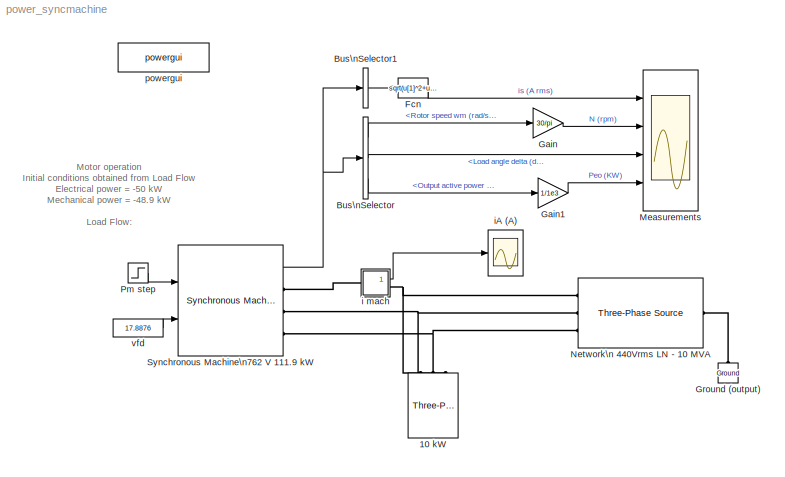
MODEL power_syncmachine
KIND model
BLOCK [Reference] 10 kW  REF=powerlib/Elements/Three-Phase\nSeries RLC Load
  ActivePower = 10e3
  AttributesFormatString = \\n
  CapacitivePower = 0
  Configuration = Y (grounded)
  InductivePower = 0
  LConnTagsString = A|B|C
  LeftPortType = p1
  Measurements = None
  NominalFrequency = 60
  NominalVoltage = 762
  PhysicalDomain = powersysdomain
  Ports = [0, 0, 0, 0, 0, 3]
  RightPortType = p1
  SourceBlock = powerlib/Elements/Three-Phase\nSeries RLC Load
  SourceType = Three-Phase Series RLC Load
  SubClassName = unknown
BLOCK [BusSelector] Bus\nSelector
  DialogController = Simulink.DDGSource_Bus
  OutputSignals = Mechanical.Rotor speed  wm (rad/s),Load angle   delta  (deg),Output active power   Peo (W)
  Ports = [1, 3]
BLOCK [BusSelector] Bus\nSelector1
  DialogController = Simulink.DDGSource_Bus
  MuxedOutput = on
  OutputSignals = dq0 components.Stator current  iq (A),dq0 components.Stator current  id (A)
  Ports = [1, 1]
BLOCK [Fcn] Fcn
  Expr = sqrt(u[1]^2+u[2]^2)/sqrt(2)
BLOCK [Gain] Gain
  Gain = 30/pi
BLOCK [Gain] Gain1
  Gain = 1/1e3
BLOCK [Reference] Ground (output)  REF=powerlib/Elements/Ground
  AttributesFormatString = \\n
  LConnTagsString = a
  LeftPortType = p1
  PhysicalDomain = powersysdomain
  Ports = [0, 0, 0, 0, 0, 1]
  RightPortType = p1
  SourceBlock = powerlib/Elements/Ground
  SourceType = Ground
  SubClassName = unknown
BLOCK [Scope] Measurements
  DataFormat = StructureWithTime
  LimitDataPoints = off
  NumInputPorts = 4
  Ports = [4]
  SaveName = is2
  SaveToWorkspace = on
  TickLabels = on
  TimeRange = 1
  YMax = 52.5~1800.25~-21~-50
  YMin = 37.5~1798.25~-26.5~-70
BLOCK [Reference] Network\n 440Vrms LN - 10 MVA  REF=powerlib/Electrical\nSources/Three-Phase Source
  BaseVoltage = 25e3
  Frequency = 60
  Inductance = 762^2/10e6/(2*pi*60)
  InternalConnection = Yn
  PhaseAngle = 0
  Ports = [0, 0, 0, 0, 0, 1, 3]
  Resistance = 762^2/10e6/10
  ShortCircuitLevel = 100e6
  ShowPortLabels = on
  SourceBlock = powerlib/Electrical\nSources/Three-Phase Source
  SourceType = Three-Phase Source
  SpecifyImpedance = off
  Voltage = 440*sqrt(3)
  XRratio = 7
BLOCK [Step] Pm step
  After = -60000
  Before = -48863
  SampleTime = 0
  Time = 0.1
BLOCK [Reference] Synchronous Machine\n762 V 111.9 kW  REF=powerlib/Machines/Synchronous Machine\nSI Fundamental
  AttributesFormatString = \\n
  Dampers1 = [ 0.0224 1.4e-3 0.02 1e-3 ]\n
  Dampers2 = [ 1 2 3 4 5 6 ]
  DisplayVfd = off
  Field = [ 0.13 2.1e-3 ]\n
  InitialConditions = [0 -111.483 53.9768 53.9768 53.9768 -173.297 66.7033 -53.2967 17.8876]
  LoadFlowParameters = [1,0,0,0,0]
  Mechanical = [ 24.9 0 2 ]
  NominalParameters = [ 111.9e3 440*sqrt(3)  60  0]
  Ports = [2, 1, 0, 0, 0, 0, 3]
  PresetModel = No
  RotorType = Salient-pole
  Saturation = []
  SetSaturation = off
  ShowDetailedParameters = on
  ShowPortLabels = on
  SourceBlock = powerlib/Machines/Synchronous Machine\nSI Fundamental
  SourceType = Synchronous Machine
  Stator = [ .26 1.14e-3 13.7e-3 11.0e-3 ]\n
  Units = 1
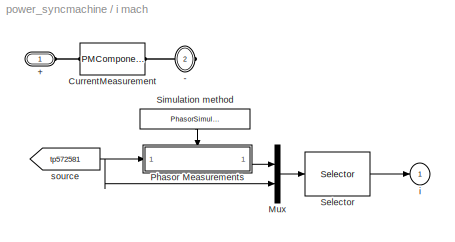
BLOCK [SubSystem] i mach
  AncestorBlock = powerlib/Measurements/Current Measurement
  AttributesFormatString = \\n
  CloseFcn = powericon('psbloadfunction',gcbh,'CloseFcn','');
  CopyFcn = powericon('psbloadfunction',gcbh,'Measurement Block','VerifyPhasor');
  InitFcn = powericon('psbloadfunction',gcbh,'InitFcnOfSPSBlocks','Measurement Block');
  LoadFcn = powericon('psbloadfunction',gcbh,'Measurement Block','');
  MaskCallbackString = ||
  MaskDescription = Ideal current measurement.
  MaskEnableString = off,off,off
  MaskHelp = web(psbhelp);
  MaskIconFrame = on
  MaskIconOpaque = off
  MaskIconRotate = port
  MaskIconUnits = autoscale
  MaskInitialization = switch OutputType\ncase 1\n    OutputSelection = 1;\n    NormalMode = 2;\n    PhasorMode = 1;\ncase 2\n    OutputSelection =[2,3];\n    NormalMode = 3;\n    PhasorMode = [1,2];\ncase 3\n    OutputSelection =[4,5];\n    NormalMode = 3;\n    PhasorMode = [1,2];\ncase 4\n    OutputSelection =[4];\n    NormalMode = 2;\n    PhasorMode = 1;\nend\n%\nif PhasorSimulation\n    SelectionMode = PhasorMode;\n...<+42ch>
  MaskPromptString = Phasor simulation|Output signal :|Equivalent circuit
  MaskSelfModifiable = on
  MaskStyleString = checkbox,popup(Complex|Real-Imag|Magnitude-Angle|Magnitude),edit
  MaskTabNameString = ,,
  MaskToolTipString = on,on,on
  MaskTunableValueString = on,on,on
  MaskType = Current Measurement
  MaskValueString = off|Magnitude|0
  MaskVarAliasString = ,,
  MaskVariables = PhasorSimulation=@1;OutputType=@2;PSBequivalent=@3;
  MaskVisibilityString = off,on,off
  MinAlgLoopOccurrences = off
  Ports = [0, 1, 0, 0, 0, 1, 1]
  PreSaveFcn = powericon('psbloadfunction',gcbh,'ModelCloseFcn','');
  RTWSystemCode = Auto
  Tag = PoWeRsYsTeMmEaSuReMeNt
  TreatAsAtomicUnit = off
BLOCK [PMIOPort] i mach/+
  Port = 1
  Side = Left
BLOCK [PMIOPort] i mach/-
  Port = 2
  Side = Right
BLOCK [PMComponent] i mach/CurrentMeasurement
  LConnTagsString = a
  LeftPortType = p1
  MaskIconFrame = on
  MaskIconOpaque = on
  MaskIconRotate = none
  MaskIconUnits = autoscale
  MaskType = InnerPowersysBlock
  PhysicalDomain = powersysdomain
  Ports = [0, 0, 0, 0, 0, 1, 1]
  RConnTagsString = __new0
  RightPortType = p1
BLOCK [Mux] i mach/Mux
  DisplayOption = bar
  Inputs = 2
  Ports = [2, 1]
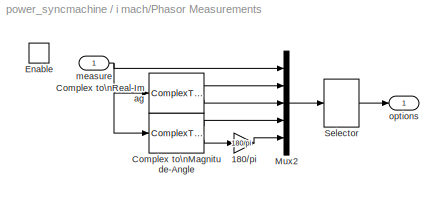
BLOCK [SubSystem] i mach/Phasor Measurements
  MinAlgLoopOccurrences = off
  Ports = [1, 1, 1]
  RTWSystemCode = Auto
  TreatAsAtomicUnit = on
BLOCK [Gain] i mach/Phasor Measurements/180//pi
  Gain = 180/pi
BLOCK [ComplexToMagnitudeAngle] i mach/Phasor Measurements/Complex to\nMagnitude-Angle
  Output = Magnitude and angle
  Ports = [1, 2]
BLOCK [ComplexToRealImag] i mach/Phasor Measurements/Complex to\nReal-Imag
  Output = Real and imag
  Ports = [1, 2]
BLOCK [EnablePort] i mach/Phasor Measurements/Enable
  Ports = []
BLOCK [Mux] i mach/Phasor Measurements/Mux2
  DisplayOption = bar
  Inputs = 5
  Ports = [5, 1]
BLOCK [Selector] i mach/Phasor Measurements/Selector
  Elements = OutputSelection
  InputPortWidth = 5
  Ports = [1, 1]
BLOCK [Inport] i mach/Phasor Measurements/measure
  IconDisplay = Port number
  LatchInput = off
  Port = 1
BLOCK [Outport] i mach/Phasor Measurements/options
  IconDisplay = Port number
  InitialOutput = 0
BLOCK [Selector] i mach/Selector
  Elements = SelectionMode
  InputPortWidth = length(OutputSelection)+1
  Ports = [1, 1]
BLOCK [Constant] i mach/Simulation method
  Value = PhasorSimulation
BLOCK [Outport] i mach/i
  IconDisplay = Port number
  InitialOutput = 0
BLOCK [From] i mach/source
  DialogController = Simulink.DDGSource
  GotoTag = tp572581
BLOCK [Scope] iA (A)
  DataFormat = Array
  LimitDataPoints = off
  NumInputPorts = 1
  Ports = [1]
  SaveName = is1
  SaveToWorkspace = on
  TickLabels = on
  TimeRange = 1
  YMax = 520
  YMin = 430
BLOCK [Reference] powergui  REF=powerlib/powergui
  DisplayStyle = off
  Frange = logspace(0,3,50)
  FreqAxis = off
  MaxFrequency = 1000
  Ports = []
  Priority = 2
  RmsSteady = 1
  ShowPortLabels = on
  SourceBlock = powerlib/powergui
  SourceType = PSB option menu block
  StartTime = 0.0
  Ts = 0
  Xlog = off
  Ylog = off
  ZoomFFT = on
  cycles = 2
  display = off
  echomessages = off
  frequency = 60
  frequencyindice = 1
  frequencyindicesteady = 1
  fundamental = 60
  methode = off
  save = off
  variable = ZData
BLOCK [Constant] vfd
  Value = 17.8876
ANNOTATION (root): Motor operation\nInitial conditions obtained from Load Flow\nElectrical power = -50 kW\nMechanical power = -48.9 kW\n\nLoad Flow: \nP&V Generator \nActive power -50e3 Watts
LINE Bus\nSelector1:1 -> Fcn:1
LINE Bus\nSelector:1 -> Gain:1
LINE Bus\nSelector:2 -> Measurements:3
LINE Bus\nSelector:3 -> Gain1:1
LINE Fcn:1 -> Measurements:1
LINE Gain1:1 -> Measurements:4
LINE Gain:1 -> Measurements:2
LINE Pm step:1 -> Synchronous Machine\n762 V 111.9 kW:1
NET Synchronous Machine\n762 V 111.9 kW:1 -> Bus\nSelector1:1, Bus\nSelector:1
LINE i mach/Mux:1 -> i mach/Selector:1
LINE i mach/Phasor Measurements/180//pi:1 -> i mach/Phasor Measurements/Mux2:5
LINE i mach/Phasor Measurements/Complex to\nMagnitude-Angle:1 -> i mach/Phasor Measurements/Mux2:4
LINE i mach/Phasor Measurements/Complex to\nMagnitude-Angle:2 -> i mach/Phasor Measurements/180//pi:1
LINE i mach/Phasor Measurements/Complex to\nReal-Imag:1 -> i mach/Phasor Measurements/Mux2:2
LINE i mach/Phasor Measurements/Complex to\nReal-Imag:2 -> i mach/Phasor Measurements/Mux2:3
LINE i mach/Phasor Measurements/Mux2:1 -> i mach/Phasor Measurements/Selector:1
LINE i mach/Phasor Measurements/Selector:1 -> i mach/Phasor Measurements/options:1
NET i mach/Phasor Measurements/measure:1 -> i mach/Phasor Measurements/Complex to\nMagnitude-Angle:1, i mach/Phasor Measurements/Complex to\nReal-Imag:1, i mach/Phasor Measurements/Mux2:1
LINE i mach/Phasor Measurements:1 -> i mach/Mux:1
LINE i mach/Selector:1 -> i mach/i:1
LINE i mach/Simulation method:1 -> i mach/Phasor Measurements:enable
NET i mach/source:1 -> i mach/Mux:2, i mach/Phasor Measurements:1
LINE i mach:1 -> iA (A):1
LINE vfd:1 -> Synchronous Machine\n762 V 111.9 kW:2
PNET net1: 10 kW:LConn1 -- Network\n 440Vrms LN - 10 MVA:RConn1 -- i mach:RConn1
PNET net2: 10 kW:LConn2 -- Network\n 440Vrms LN - 10 MVA:RConn2 -- Synchronous Machine\n762 V 111.9 kW:RConn2
PNET net3: 10 kW:LConn3 -- Network\n 440Vrms LN - 10 MVA:RConn3 -- Synchronous Machine\n762 V 111.9 kW:RConn3
PLINE Ground (output):LConn1 -- Network\n 440Vrms LN - 10 MVA:LConn1
PLINE Synchronous Machine\n762 V 111.9 kW:RConn1 -- i mach:LConn1
PLINE i mach/+:RConn1 -- i mach/CurrentMeasurement:LConn1
PLINE i mach/-:RConn1 -- i mach/CurrentMeasurement:RConn1
note: NET lines group one-source signal fan-out (src -> all destinations, sorted); 1:1 wires keep LINE; PNET lines group multi-terminal physical nets as a canonical sorted terminal list (undirected conserving connections); 2-terminal nets keep the pairwise PLINE form
